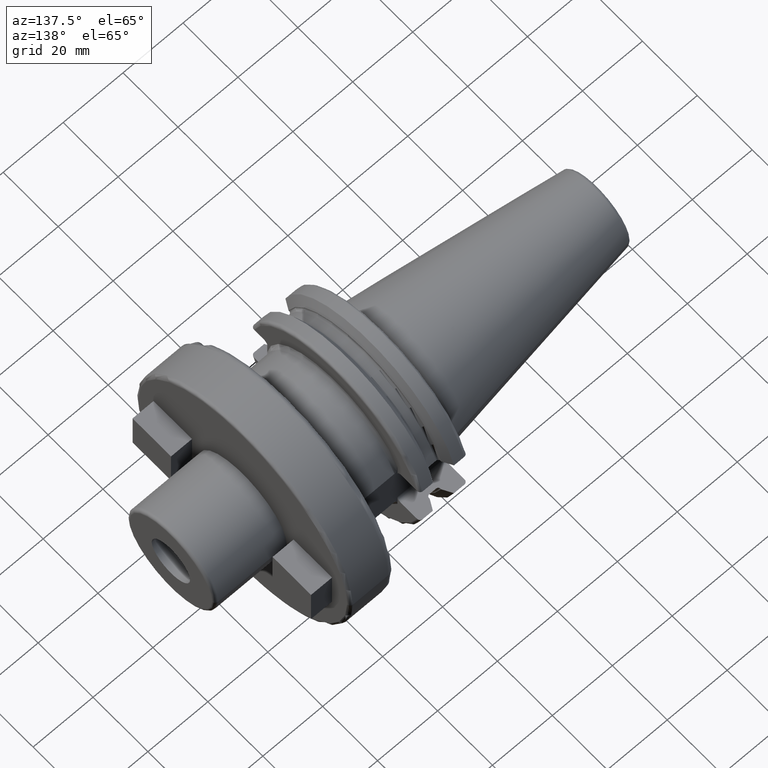
[diagram: clean part render]
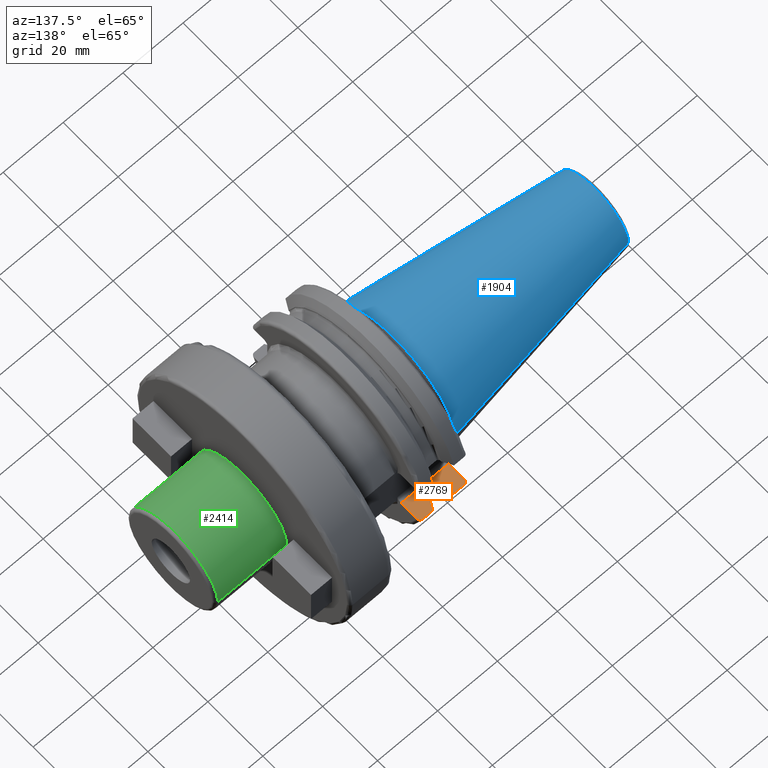
[diagram: same view with three faces highlighted in distinct colors, each labeled with its STEP entity id]
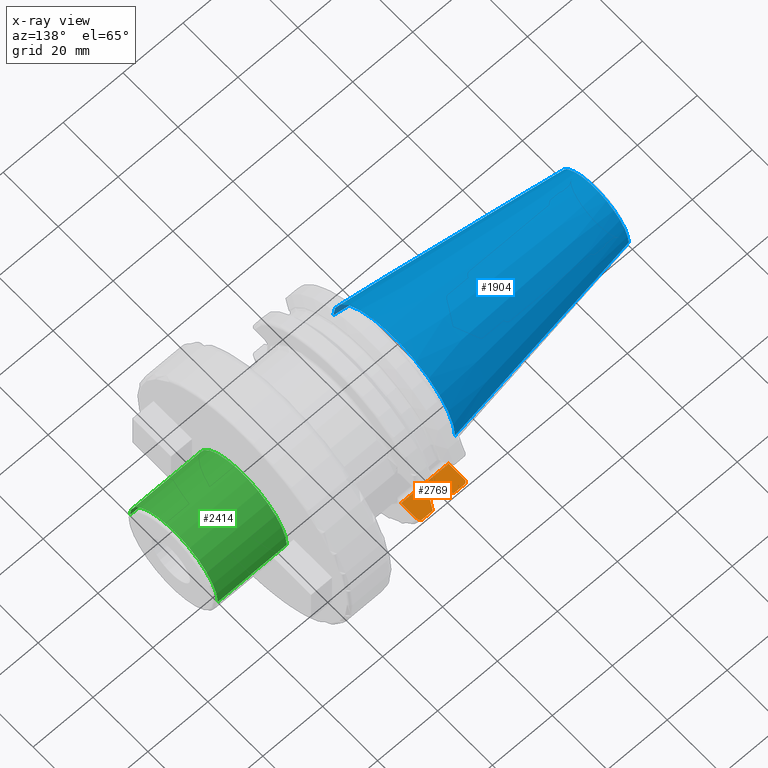
[diagram: x-ray of the same camera — body ghosted, the three highlighted faces saturated]
A machine part, auxiliary view with three faces highlighted in distinct colors.
The next image is the same camera in x-ray (body ghosted, the three faces saturated) — at least one of them is partly hidden behind the body in this view.
Their STEP definitions:

[orange] entity #2769 — the highlighted planar face has unit normal (0, 0, -1).
#179=DIRECTION('',(0.E0,-1.E0,0.E0));
#180=VECTOR('',#179,5.776950757280E0);
#181=CARTESIAN_POINT('',(1.905E1,2.967695075728E1,-8.1E0));
#182=LINE('',#181,#180);
#619=CARTESIAN_POINT('',(1.805E1,3.071231684927E1,-8.1E0));
#620=CARTESIAN_POINT('',(1.812702529647E1,3.071231684927E1,-8.1E0));
#621=CARTESIAN_POINT('',(1.827656518037E1,3.069444719907E1,-8.1E0));
#622=CARTESIAN_POINT('',(1.849273698584E1,3.061544862934E1,-8.1E0));
#623=CARTESIAN_POINT('',(1.868460186607E1,3.048863686818E1,-8.1E0));
#624=CARTESIAN_POINT('',(1.884263679922E1,3.032251203229E1,-8.1E0));
#625=CARTESIAN_POINT('',(1.896052984725E1,3.012566774399E1,-8.1E0));
#626=CARTESIAN_POINT('',(1.903334281973E1,2.990707436768E1,-8.1E0));
#627=CARTESIAN_POINT('',(1.905E1,2.975515277820E1,-8.1E0));
#628=CARTESIAN_POINT('',(1.905E1,2.967695075728E1,-8.1E0));
#673=DIRECTION('',(-1.E0,0.E0,0.E0));
#674=VECTOR('',#673,1.585E1);
#675=CARTESIAN_POINT('',(1.905E1,2.39E1,-8.1E0));
#676=LINE('',#675,#674);
#720=DIRECTION('',(0.E0,-1.E0,0.E0));
#721=VECTOR('',#720,5.776950757280E0);
#722=CARTESIAN_POINT('',(3.2E0,2.967695075728E1,-8.1E0));
#723=LINE('',#722,#721);
#813=DIRECTION('',(0.E0,-1.E0,0.E0));
#814=VECTOR('',#813,2.214507044446E-1);
#815=CARTESIAN_POINT('',(9.2625E0,2.780681820245E1,-8.1E0));
#816=LINE('',#815,#814);
#919=DIRECTION('',(0.E0,-1.E0,1.604290981016E-14));
#920=VECTOR('',#919,2.214507044446E-1);
#921=CARTESIAN_POINT('',(1.30875E1,2.780681820245E1,-8.1E0));
#922=LINE('',#921,#920);
#964=CARTESIAN_POINT('',(1.23375E1,2.680279836137E1,-8.1E0));
#965=CARTESIAN_POINT('',(1.239562674305E1,2.680279836137E1,-8.1E0));
#966=CARTESIAN_POINT('',(1.250833850947E1,2.681647967473E1,-8.1E0));
#967=CARTESIAN_POINT('',(1.267115939476E1,2.687697033942E1,-8.1E0));
#968=CARTESIAN_POINT('',(1.281461158638E1,2.697320741180E1,-8.1E0));
#969=CARTESIAN_POINT('',(1.293266629249E1,2.709885742794E1,-8.1E0));
#970=CARTESIAN_POINT('',(1.302055059705E1,2.724712798877E1,-8.1E0));
#971=CARTESIAN_POINT('',(1.307501358899E1,2.741187526171E1,-8.1E0));
#972=CARTESIAN_POINT('',(1.30875E1,2.752640409084E1,-8.1E0));
#973=CARTESIAN_POINT('',(1.30875E1,2.758536749801E1,-8.1E0));
#1018=DIRECTION('',(1.E0,0.E0,0.E0));
#1019=VECTOR('',#1018,2.325E0);
#1020=CARTESIAN_POINT('',(1.00125E1,2.680279836137E1,-8.1E0));
#1021=LINE('',#1020,#1019);
#1044=CARTESIAN_POINT('',(9.2625E0,2.758536749801E1,-8.1E0));
#1045=CARTESIAN_POINT('',(9.2625E0,2.752618761985E1,-8.1E0));
#1046=CARTESIAN_POINT('',(9.275065021869E0,2.741125245771E1,-8.1E0));
#1047=CARTESIAN_POINT('',(9.330017296387E0,2.724574966430E1,-8.1E0));
#1048=CARTESIAN_POINT('',(9.418514302459E0,2.709725570567E1,-8.1E0));
#1049=CARTESIAN_POINT('',(9.536940885437E0,2.697190991915E1,-8.1E0));
#1050=CARTESIAN_POINT('',(9.680259770071E0,2.687630945530E1,-8.1E0));
#1051=CARTESIAN_POINT('',(9.842325690080E0,2.681638482234E1,-8.1E0));
#1052=CARTESIAN_POINT('',(9.954609318184E0,2.680279836137E1,-8.1E0));
#1053=CARTESIAN_POINT('',(1.00125E1,2.680279836137E1,-8.1E0));
#1102=DIRECTION('',(1.E0,0.E0,0.E0));
#1103=VECTOR('',#1102,3.445946479578E0);
#1104=CARTESIAN_POINT('',(4.2E0,3.071231684927E1,-8.1E0));
#1105=LINE('',#1104,#1103);
#1115=DIRECTION('',(1.E0,0.E0,0.E0));
#1116=VECTOR('',#1115,3.345946479578E0);
#1117=CARTESIAN_POINT('',(1.470405352042E1,3.071231684927E1,-8.1E0));
#1118=LINE('',#1117,#1116);
#1164=CARTESIAN_POINT('',(3.2E0,2.967695075728E1,-8.1E0));
#1165=CARTESIAN_POINT('',(3.2E0,2.975535829664E1,-8.1E0));
#1166=CARTESIAN_POINT('',(3.216736704136E0,2.990767511790E1,-8.1E0));
#1167=CARTESIAN_POINT('',(3.290003023403E0,3.012696803037E1,-8.1E0));
#1168=CARTESIAN_POINT('',(3.408578685874E0,3.032415560769E1,-8.1E0));
#1169=CARTESIAN_POINT('',(3.566974678455E0,3.048991705446E1,-8.1E0));
#1170=CARTESIAN_POINT('',(3.758498450120E0,3.061600082070E1,-8.1E0));
#1171=CARTESIAN_POINT('',(3.973995795704E0,3.069452712052E1,-8.1E0));
#1172=CARTESIAN_POINT('',(4.123165215148E0,3.071231684927E1,-8.1E0));
#1173=CARTESIAN_POINT('',(4.2E0,3.071231684927E1,-8.1E0));
#1232=CARTESIAN_POINT('',(9.2625E0,2.780681820245E1,-8.1E0));
#1233=CARTESIAN_POINT('',(9.089138247115E0,2.811956968242E1,-8.1E0));
#1234=CARTESIAN_POINT('',(8.738235514848E0,2.875178670793E1,-8.1E0));
#1235=CARTESIAN_POINT('',(8.199445066245E0,2.972014324708E1,-8.1E0));
#1236=CARTESIAN_POINT('',(7.831837395590E0,3.037933474515E1,-8.1E0));
#1237=CARTESIAN_POINT('',(7.645946479578E0,3.071231684927E1,-8.1E0));
#1260=CARTESIAN_POINT('',(1.30875E1,2.780681820245E1,-8.1E0));
#1261=CARTESIAN_POINT('',(1.326086175289E1,2.811956968242E1,-8.1E0));
#1262=CARTESIAN_POINT('',(1.361176448515E1,2.875178670793E1,-8.1E0));
#1263=CARTESIAN_POINT('',(1.415055493375E1,2.972014324708E1,-8.1E0));
#1264=CARTESIAN_POINT('',(1.451816260441E1,3.037933474515E1,-8.1E0));
#1265=CARTESIAN_POINT('',(1.470405352042E1,3.071231684927E1,-8.1E0));
#1596=CARTESIAN_POINT('',(9.2625E0,2.780681820245E1,-8.1E0));
#1597=CARTESIAN_POINT('',(9.2625E0,2.758536749801E1,-8.1E0));
#1598=VERTEX_POINT('',#1596);
#1599=VERTEX_POINT('',#1597);
#1626=CARTESIAN_POINT('',(1.30875E1,2.780681820245E1,-8.1E0));
#1627=CARTESIAN_POINT('',(1.30875E1,2.758536749801E1,-8.1E0));
#1628=VERTEX_POINT('',#1626);
#1629=VERTEX_POINT('',#1627);
#1648=VERTEX_POINT('',#1053);
#1650=CARTESIAN_POINT('',(1.23375E1,2.680279836137E1,-8.1E0));
#1651=VERTEX_POINT('',#1650);
#1654=VERTEX_POINT('',#1265);
#1656=VERTEX_POINT('',#1237);
#1666=CARTESIAN_POINT('',(4.2E0,3.071231684927E1,-8.1E0));
#1667=VERTEX_POINT('',#1666);
#1668=CARTESIAN_POINT('',(1.805E1,3.071231684927E1,-8.1E0));
#1669=VERTEX_POINT('',#1668);
#1681=VERTEX_POINT('',#628);
#1683=VERTEX_POINT('',#1164);
#1701=CARTESIAN_POINT('',(1.905E1,2.39E1,-8.1E0));
#1702=CARTESIAN_POINT('',(3.2E0,2.39E1,-8.1E0));
#1703=VERTEX_POINT('',#1701);
#1704=VERTEX_POINT('',#1702);
#2737=CARTESIAN_POINT('',(1.905E1,2.255E1,-8.1E0));
#2738=DIRECTION('',(0.E0,0.E0,-1.E0));
#2739=DIRECTION('',(0.E0,1.E0,0.E0));
#2740=AXIS2_PLACEMENT_3D('',#2737,#2738,#2739);
#2741=PLANE('',#2740);
#2742=ORIENTED_EDGE('',*,*,#2038,.T.);
#2744=ORIENTED_EDGE('',*,*,#2743,.F.);
#2746=ORIENTED_EDGE('',*,*,#2745,.T.);
#2748=ORIENTED_EDGE('',*,*,#2747,.T.);
#2750=ORIENTED_EDGE('',*,*,#2749,.F.);
#2752=ORIENTED_EDGE('',*,*,#2751,.T.);
#2754=ORIENTED_EDGE('',*,*,#2753,.T.);
#2756=ORIENTED_EDGE('',*,*,#2755,.T.);
#2758=ORIENTED_EDGE('',*,*,#2757,.T.);
#2760=ORIENTED_EDGE('',*,*,#2759,.F.);
#2762=ORIENTED_EDGE('',*,*,#2761,.T.);
#2764=ORIENTED_EDGE('',*,*,#2763,.T.);
#2765=ORIENTED_EDGE('',*,*,#2713,.T.);
#2766=ORIENTED_EDGE('',*,*,#2075,.T.);
#2767=EDGE_LOOP('',(#2742,#2744,#2746,#2748,#2750,#2752,#2754,#2756,#2758,#2760,
#2762,#2764,#2765,#2766));
#2768=FACE_OUTER_BOUND('',#2767,.F.);
#2769=ADVANCED_FACE('',(#2768),#2741,.F.);
#629=B_SPLINE_CURVE_WITH_KNOTS('',3,(#619,#620,#621,#622,#623,#624,#625,#626,
#627,#628),.UNSPECIFIED.,.F.,.F.,(4,1,1,1,1,1,1,4),(0.E0,1.428571428571E-1,
2.857142857143E-1,4.285714285714E-1,5.714285714286E-1,7.142857142857E-1,
8.571428571429E-1,1.E0),.UNSPECIFIED.);
#974=B_SPLINE_CURVE_WITH_KNOTS('',3,(#964,#965,#966,#967,#968,#969,#970,#971,
#972,#973),.UNSPECIFIED.,.F.,.F.,(4,1,1,1,1,1,1,4),(0.E0,1.428571428571E-1,
2.857142857143E-1,4.285714285714E-1,5.714285714286E-1,7.142857142857E-1,
8.571428571429E-1,1.E0),.UNSPECIFIED.);
#1054=B_SPLINE_CURVE_WITH_KNOTS('',3,(#1044,#1045,#1046,#1047,#1048,#1049,#1050,
#1051,#1052,#1053),.UNSPECIFIED.,.F.,.F.,(4,1,1,1,1,1,1,4),(0.E0,
1.428571428571E-1,2.857142857143E-1,4.285714285714E-1,5.714285714286E-1,
7.142857142857E-1,8.571428571429E-1,1.E0),.UNSPECIFIED.);
#1174=B_SPLINE_CURVE_WITH_KNOTS('',3,(#1164,#1165,#1166,#1167,#1168,#1169,#1170,
#1171,#1172,#1173),.UNSPECIFIED.,.F.,.F.,(4,1,1,1,1,1,1,4),(0.E0,
1.428571428571E-1,2.857142857143E-1,4.285714285714E-1,5.714285714286E-1,
7.142857142857E-1,8.571428571429E-1,1.E0),.UNSPECIFIED.);
#1238=B_SPLINE_CURVE_WITH_KNOTS('',3,(#1232,#1233,#1234,#1235,#1236,#1237),
.UNSPECIFIED.,.F.,.F.,(4,1,1,4),(0.E0,3.333333333333E-1,6.666666666667E-1,1.E0),
.UNSPECIFIED.);
#1266=B_SPLINE_CURVE_WITH_KNOTS('',3,(#1260,#1261,#1262,#1263,#1264,#1265),
.UNSPECIFIED.,.F.,.F.,(4,1,1,4),(0.E0,3.333333333333E-1,6.666666666667E-1,1.E0),
.UNSPECIFIED.);
#2038=EDGE_CURVE('',#1703,#1704,#676,.T.);
#2075=EDGE_CURVE('',#1681,#1703,#182,.T.);
#2713=EDGE_CURVE('',#1669,#1681,#629,.T.);
#2743=EDGE_CURVE('',#1683,#1704,#723,.T.);
#2745=EDGE_CURVE('',#1683,#1667,#1174,.T.);
#2747=EDGE_CURVE('',#1667,#1656,#1105,.T.);
#2749=EDGE_CURVE('',#1598,#1656,#1238,.T.);
#2751=EDGE_CURVE('',#1598,#1599,#816,.T.);
#2753=EDGE_CURVE('',#1599,#1648,#1054,.T.);
#2755=EDGE_CURVE('',#1648,#1651,#1021,.T.);
#2757=EDGE_CURVE('',#1651,#1629,#974,.T.);
#2759=EDGE_CURVE('',#1628,#1629,#922,.T.);
#2761=EDGE_CURVE('',#1628,#1654,#1266,.T.);
#2763=EDGE_CURVE('',#1654,#1669,#1118,.T.);

[blue] entity #1904 — the highlighted conical surface has half-angle 8.298 deg.
#37=CARTESIAN_POINT('',(-6.743710273571E1,0.E0,0.E0));
#38=DIRECTION('',(1.E0,0.E0,0.E0));
#39=DIRECTION('',(0.E0,1.E0,0.E0));
#40=AXIS2_PLACEMENT_3D('',#37,#38,#39);
#42=CARTESIAN_POINT('',(-4.896823332305E-1,0.E0,0.E0));
#43=DIRECTION('',(1.E0,0.E0,0.E0));
#44=DIRECTION('',(0.E0,1.E0,0.E0));
#45=AXIS2_PLACEMENT_3D('',#42,#43,#44);
#47=DIRECTION('',(-9.895312636440E-1,-1.443186691705E-1,0.E0));
#48=VECTOR('',#47,6.765568998391E1);
#49=CARTESIAN_POINT('',(-4.896823332305E-1,2.215358204157E1,0.E0));
#50=LINE('',#49,#48);
#51=DIRECTION('',(-9.895312636440E-1,1.443186691705E-1,0.E0));
#52=VECTOR('',#51,6.765568998391E1);
#53=CARTESIAN_POINT('',(-4.896823332305E-1,-2.215358204157E1,0.E0));
#54=LINE('',#53,#52);
#1520=CARTESIAN_POINT('',(-6.743710273571E1,1.238960290128E1,0.E0));
#1522=VERTEX_POINT('',#1520);
#1524=CARTESIAN_POINT('',(-6.743710273571E1,-1.238960290128E1,0.E0));
#1526=VERTEX_POINT('',#1524);
#1588=CARTESIAN_POINT('',(-4.896823332305E-1,2.215358204157E1,0.E0));
#1589=VERTEX_POINT('',#1588);
#1590=CARTESIAN_POINT('',(-4.896823332305E-1,-2.215358204157E1,0.E0));
#1591=VERTEX_POINT('',#1590);
#1890=CARTESIAN_POINT('',(-3.396339253447E1,0.E0,0.E0));
#1891=DIRECTION('',(1.E0,0.E0,0.E0));
#1892=DIRECTION('',(0.E0,-1.E0,0.E0));
#1893=AXIS2_PLACEMENT_3D('',#1890,#1891,#1892);
#1894=CONICAL_SURFACE('',#1893,1.727159247143E1,8.297826828206E0);
#1896=ORIENTED_EDGE('',*,*,#1895,.F.);
#1898=ORIENTED_EDGE('',*,*,#1897,.T.);
#1900=ORIENTED_EDGE('',*,*,#1899,.T.);
#1901=ORIENTED_EDGE('',*,*,#1883,.F.);
#1902=EDGE_LOOP('',(#1896,#1898,#1900,#1901));
#1903=FACE_OUTER_BOUND('',#1902,.F.);
#1904=ADVANCED_FACE('',(#1903),#1894,.T.);
#41=CIRCLE('',#40,1.238960290128E1);
#46=CIRCLE('',#45,2.215358204157E1);
#1883=EDGE_CURVE('',#1522,#1526,#41,.T.);
#1895=EDGE_CURVE('',#1589,#1522,#50,.T.);
#1897=EDGE_CURVE('',#1589,#1591,#46,.T.);
#1899=EDGE_CURVE('',#1591,#1526,#54,.T.);

[green] entity #2414 — the highlighted cylindrical surface (partial cylindrical patch) has radius 16 mm, axis along (1, 0, 0).
#415=CARTESIAN_POINT('',(5.E1,0.E0,0.E0));
#416=DIRECTION('',(1.E0,0.E0,0.E0));
#417=DIRECTION('',(0.E0,1.E0,0.E0));
#418=AXIS2_PLACEMENT_3D('',#415,#416,#417);
#467=CARTESIAN_POINT('',(7.3E1,0.E0,0.E0));
#468=DIRECTION('',(-1.E0,0.E0,0.E0));
#469=DIRECTION('',(0.E0,-1.E0,0.E0));
#470=AXIS2_PLACEMENT_3D('',#467,#468,#469);
#472=DIRECTION('',(-1.E0,0.E0,1.773884905340E-14));
#473=VECTOR('',#472,2.3E1);
#474=CARTESIAN_POINT('',(7.3E1,1.6E1,-4.066872383091E-13));
#475=LINE('',#474,#473);
#476=DIRECTION('',(-1.E0,0.E0,-1.802648247244E-14));
#477=VECTOR('',#476,2.3E1);
#478=CARTESIAN_POINT('',(7.3E1,-1.6E1,4.133028069471E-13));
#479=LINE('',#478,#477);
#1750=CARTESIAN_POINT('',(5.E1,1.6E1,0.E0));
#1751=CARTESIAN_POINT('',(5.E1,-1.6E1,0.E0));
#1752=VERTEX_POINT('',#1750);
#1753=VERTEX_POINT('',#1751);
#1768=CARTESIAN_POINT('',(7.3E1,1.6E1,-4.066872383091E-13));
#1769=VERTEX_POINT('',#1768);
#1770=CARTESIAN_POINT('',(7.3E1,-1.6E1,4.133028069471E-13));
#1771=VERTEX_POINT('',#1770);
#2400=CARTESIAN_POINT('',(1.63025E1,0.E0,0.E0));
#2401=DIRECTION('',(1.E0,0.E0,0.E0));
#2402=DIRECTION('',(0.E0,-1.E0,0.E0));
#2403=AXIS2_PLACEMENT_3D('',#2400,#2401,#2402);
#2404=CYLINDRICAL_SURFACE('',#2403,1.6E1);
#2406=ORIENTED_EDGE('',*,*,#2405,.F.);
#2408=ORIENTED_EDGE('',*,*,#2407,.F.);
#2410=ORIENTED_EDGE('',*,*,#2409,.T.);
#2411=ORIENTED_EDGE('',*,*,#2373,.F.);
#2412=EDGE_LOOP('',(#2406,#2408,#2410,#2411));
#2413=FACE_OUTER_BOUND('',#2412,.F.);
#2414=ADVANCED_FACE('',(#2413),#2404,.T.);
#419=CIRCLE('',#418,1.6E1);
#471=CIRCLE('',#470,1.6E1);
#2373=EDGE_CURVE('',#1752,#1753,#419,.T.);
#2405=EDGE_CURVE('',#1769,#1752,#475,.T.);
#2407=EDGE_CURVE('',#1771,#1769,#471,.T.);
#2409=EDGE_CURVE('',#1771,#1753,#479,.T.);